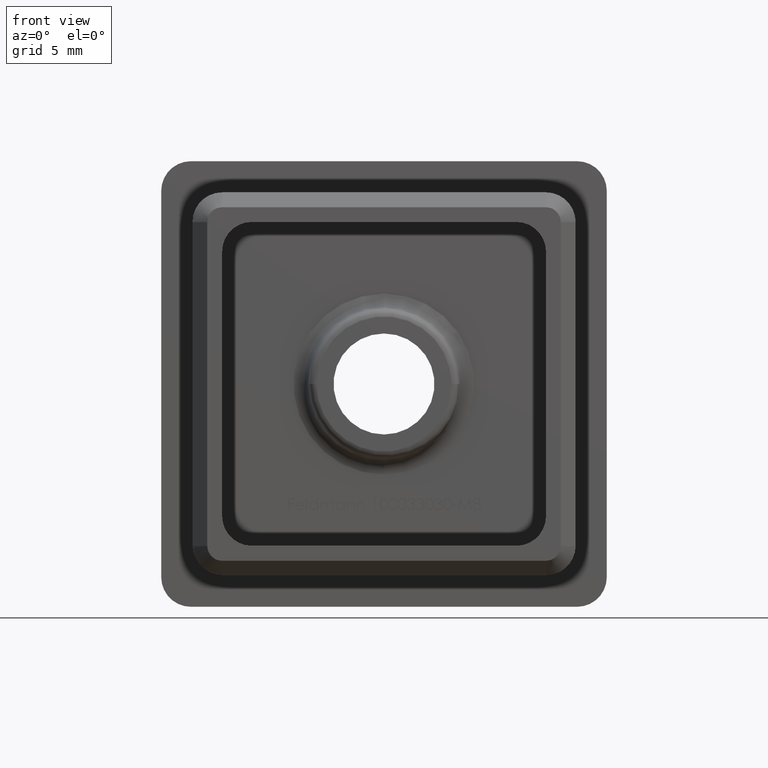
[diagram: clean part render]
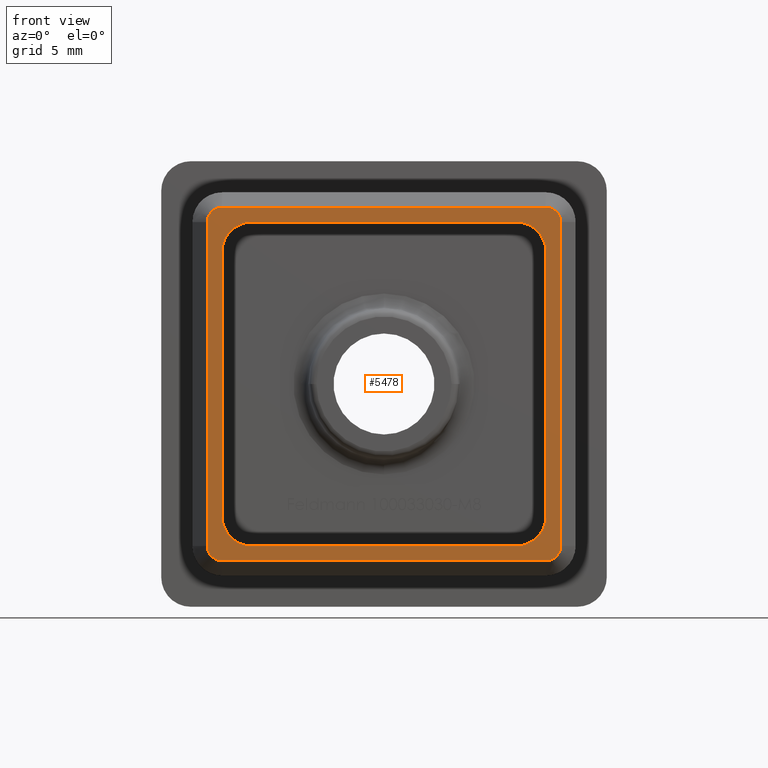
[diagram: same view with one face highlighted and labeled with its STEP entity id]
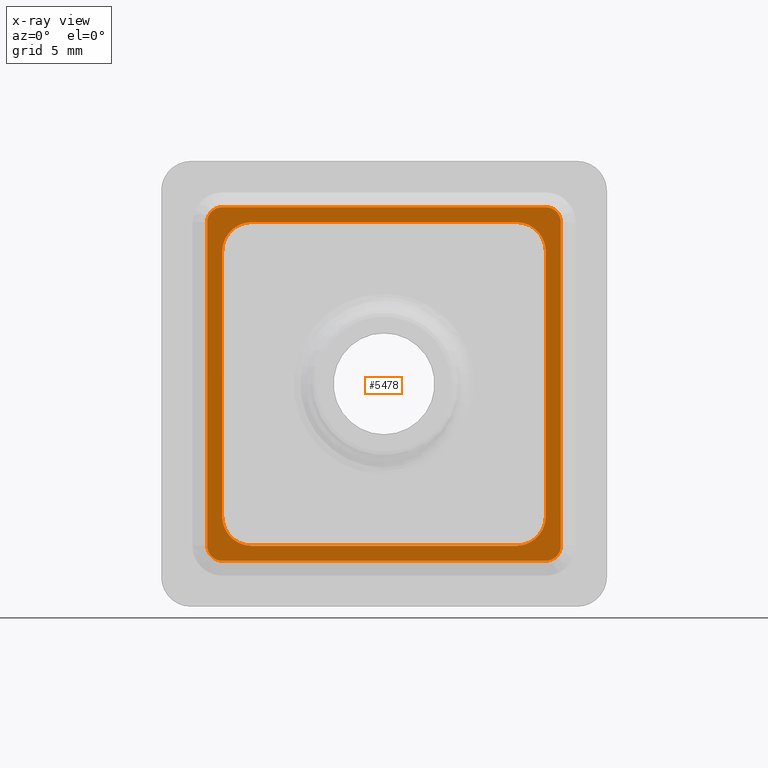
[diagram: x-ray of the same camera — body ghosted, the highlighted face saturated]
A machine part, front view. The second image highlights one B-rep face of the part: STEP entity #5478.
The next image is the same camera in x-ray: the body ghosted, the highlighted face saturated — about 0% of this face is hidden behind the body in this view.
In plain terms, the highlighted planar face has unit normal (0, -1, 0).
Its self-contained STEP definition (entity closure, byte-faithful):
#151 = DIRECTION ( 'NONE',  ( 0.0000000000000000000, 0.0000000000000000000, -1.000000000000000000 ) ) ;
#152 = CARTESIAN_POINT ( 'NONE',  ( 11.90000000000000400, -20.00000000000000000, -10.90000000000000400 ) ) ;
#306 = CARTESIAN_POINT ( 'NONE',  ( 10.90000000000000400, -20.00000000000000000, -8.900000000000007500 ) ) ;
#333 = VECTOR ( 'NONE', #13597, 1000.000000000000000 ) ;
#517 = DIRECTION ( 'NONE',  ( 0.0000000000000000000, 0.0000000000000000000, -1.000000000000000000 ) ) ;
#789 = ORIENTED_EDGE ( 'NONE', *, *, #14087, .T. ) ;
#831 = VECTOR ( 'NONE', #4266, 1000.000000000000000 ) ;
#946 = EDGE_CURVE ( 'NONE', #8048, #8342, #2799, .T. ) ;
#970 = VECTOR ( 'NONE', #7941, 1000.000000000000000 ) ;
#1133 = CARTESIAN_POINT ( 'NONE',  ( -11.90000000000000400, -20.00000000000000000, 10.90000000000000600 ) ) ;
#1223 = CARTESIAN_POINT ( 'NONE',  ( 8.900000000000005700, -20.00000000000000000, 8.900000000000005700 ) ) ;
#1270 = CIRCLE ( 'NONE', #8022, 2.000000000000000000 ) ;
#1606 = VERTEX_POINT ( 'NONE', #10081 ) ;
#1645 = CARTESIAN_POINT ( 'NONE',  ( 10.90000000000000600, -20.00000000000000000, 8.900000000000005700 ) ) ;
#1692 = ORIENTED_EDGE ( 'NONE', *, *, #12289, .T. ) ;
#1766 = EDGE_LOOP ( 'NONE', ( #3030, #1692, #14802, #13570, #16777, #789, #7461, #6140 ) ) ;
#1894 = VERTEX_POINT ( 'NONE', #1133 ) ;
#1962 = VERTEX_POINT ( 'NONE', #16712 ) ;
#2320 = CARTESIAN_POINT ( 'NONE',  ( -10.90000000000000600, -20.00000000000000000, -10.90000000000000600 ) ) ;
#2635 = ORIENTED_EDGE ( 'NONE', *, *, #13159, .T. ) ;
#2688 = EDGE_CURVE ( 'NONE', #8754, #5545, #2803, .T. ) ;
#2799 = LINE ( 'NONE', #14195, #831 ) ;
#2803 = LINE ( 'NONE', #3004, #3715 ) ;
#2955 = EDGE_CURVE ( 'NONE', #3107, #7989, #14870, .T. ) ;
#3004 = CARTESIAN_POINT ( 'NONE',  ( -10.90000000000000600, -20.00000000000000000, -10.90000000000000400 ) ) ;
#3030 = ORIENTED_EDGE ( 'NONE', *, *, #12438, .T. ) ;
#3039 = LINE ( 'NONE', #11054, #16442 ) ;
#3100 = DIRECTION ( 'NONE',  ( 0.0000000000000000000, 0.0000000000000000000, -1.000000000000000000 ) ) ;
#3107 = VERTEX_POINT ( 'NONE', #14673 ) ;
#3118 = CARTESIAN_POINT ( 'NONE',  ( 0.0000000000000000000, -20.00000000000000000, 0.0000000000000000000 ) ) ;
#3224 = DIRECTION ( 'NONE',  ( 0.0000000000000000000, -1.000000000000000000, 0.0000000000000000000 ) ) ;
#3242 = DIRECTION ( 'NONE',  ( 0.0000000000000000000, -1.000000000000000000, 0.0000000000000000000 ) ) ;
#3715 = VECTOR ( 'NONE', #5778, 1000.000000000000000 ) ;
#3804 = DIRECTION ( 'NONE',  ( -0.0000000000000000000, 1.000000000000000000, -0.0000000000000000000 ) ) ;
#4214 = AXIS2_PLACEMENT_3D ( 'NONE', #3118, #15719, #7326 ) ;
#4266 = DIRECTION ( 'NONE',  ( 7.957447137508285800E-017, -0.0000000000000000000, 1.000000000000000000 ) ) ;
#4315 = EDGE_CURVE ( 'NONE', #8048, #5545, #9779, .T. ) ;
#4365 = VERTEX_POINT ( 'NONE', #13089 ) ;
#4517 = EDGE_CURVE ( 'NONE', #8055, #1962, #12951, .T. ) ;
#4566 = CARTESIAN_POINT ( 'NONE',  ( 10.90000000000000600, -20.00000000000000000, -10.90000000000000400 ) ) ;
#4592 = CARTESIAN_POINT ( 'NONE',  ( 8.900000000000007500, -20.00000000000000000, -8.900000000000005700 ) ) ;
#4657 = CARTESIAN_POINT ( 'NONE',  ( -10.90000000000000600, -20.00000000000000000, 11.90000000000000400 ) ) ;
#4800 = EDGE_CURVE ( 'NONE', #1606, #4365, #9359, .T. ) ;
#4977 = VECTOR ( 'NONE', #14877, 1000.000000000000000 ) ;
#4992 = LINE ( 'NONE', #11694, #4977 ) ;
#5471 = DIRECTION ( 'NONE',  ( 0.0000000000000000000, -0.0000000000000000000, -1.000000000000000000 ) ) ;
#5478 = ADVANCED_FACE ( 'NONE', ( #16389, #12616 ), #11418, .T. ) ;
#5545 = VERTEX_POINT ( 'NONE', #7209 ) ;
#5719 = VERTEX_POINT ( 'NONE', #11886 ) ;
#5778 = DIRECTION ( 'NONE',  ( 1.000000000000000000, 0.0000000000000000000, -7.957447137508287000E-017 ) ) ;
#5928 = CIRCLE ( 'NONE', #9669, 0.9999999999999991100 ) ;
#5933 = DIRECTION ( 'NONE',  ( -0.0000000000000000000, 1.000000000000000000, -0.0000000000000000000 ) ) ;
#6048 = AXIS2_PLACEMENT_3D ( 'NONE', #1223, #18126, #18254 ) ;
#6109 = DIRECTION ( 'NONE',  ( -1.000000000000000000, 0.0000000000000000000, 0.0000000000000000000 ) ) ;
#6140 = ORIENTED_EDGE ( 'NONE', *, *, #12141, .T. ) ;
#6249 = CARTESIAN_POINT ( 'NONE',  ( 11.90000000000000200, -20.00000000000000000, 10.90000000000000600 ) ) ;
#6256 = VERTEX_POINT ( 'NONE', #6249 ) ;
#6273 = ORIENTED_EDGE ( 'NONE', *, *, #8223, .T. ) ;
#6607 = ORIENTED_EDGE ( 'NONE', *, *, #2955, .F. ) ;
#6643 = DIRECTION ( 'NONE',  ( 0.0000000000000000000, -1.000000000000000000, 0.0000000000000000000 ) ) ;
#6753 = DIRECTION ( 'NONE',  ( 0.0000000000000000000, 0.0000000000000000000, -1.000000000000000000 ) ) ;
#6878 = CIRCLE ( 'NONE', #11859, 0.9999999999999991100 ) ;
#7004 = CARTESIAN_POINT ( 'NONE',  ( -10.90000000000000600, -20.00000000000000000, 10.90000000000000600 ) ) ;
#7082 = CARTESIAN_POINT ( 'NONE',  ( -10.90000000000000600, -20.00000000000000000, 10.90000000000000600 ) ) ;
#7209 = CARTESIAN_POINT ( 'NONE',  ( 8.900000000000007500, -20.00000000000000000, -10.90000000000000600 ) ) ;
#7326 = DIRECTION ( 'NONE',  ( 0.0000000000000000000, -0.0000000000000000000, -1.000000000000000000 ) ) ;
#7461 = ORIENTED_EDGE ( 'NONE', *, *, #4800, .T. ) ;
#7490 = CARTESIAN_POINT ( 'NONE',  ( 10.90000000000000400, -20.00000000000000000, 11.90000000000000400 ) ) ;
#7941 = DIRECTION ( 'NONE',  ( -1.000000000000000000, -0.0000000000000000000, -0.0000000000000000000 ) ) ;
#7989 = VERTEX_POINT ( 'NONE', #18244 ) ;
#8022 = AXIS2_PLACEMENT_3D ( 'NONE', #10218, #5933, #17199 ) ;
#8048 = VERTEX_POINT ( 'NONE', #306 ) ;
#8055 = VERTEX_POINT ( 'NONE', #7490 ) ;
#8113 = CARTESIAN_POINT ( 'NONE',  ( -10.90000000000000600, -20.00000000000000000, 10.90000000000000600 ) ) ;
#8223 = EDGE_CURVE ( 'NONE', #14992, #8342, #13243, .T. ) ;
#8342 = VERTEX_POINT ( 'NONE', #1645 ) ;
#8361 = VERTEX_POINT ( 'NONE', #152 ) ;
#8672 = EDGE_CURVE ( 'NONE', #1962, #1894, #17212, .T. ) ;
#8754 = VERTEX_POINT ( 'NONE', #14288 ) ;
#8795 = ORIENTED_EDGE ( 'NONE', *, *, #4315, .T. ) ;
#9321 = CIRCLE ( 'NONE', #12240, 2.000000000000000000 ) ;
#9359 = CIRCLE ( 'NONE', #16803, 0.9999999999999991100 ) ;
#9575 = VECTOR ( 'NONE', #6109, 1000.000000000000000 ) ;
#9669 = AXIS2_PLACEMENT_3D ( 'NONE', #4566, #3242, #517 ) ;
#9672 = ORIENTED_EDGE ( 'NONE', *, *, #12664, .T. ) ;
#9779 = CIRCLE ( 'NONE', #11437, 2.000000000000000000 ) ;
#10081 = CARTESIAN_POINT ( 'NONE',  ( -11.90000000000000400, -20.00000000000000000, -10.90000000000000600 ) ) ;
#10218 = CARTESIAN_POINT ( 'NONE',  ( -8.900000000000005700, -20.00000000000000000, -8.900000000000003900 ) ) ;
#10765 = CARTESIAN_POINT ( 'NONE',  ( 11.90000000000000400, -20.00000000000000000, 10.90000000000000600 ) ) ;
#10998 = DIRECTION ( 'NONE',  ( 0.0000000000000000000, 0.0000000000000000000, -1.000000000000000000 ) ) ;
#11054 = CARTESIAN_POINT ( 'NONE',  ( -11.90000000000000400, -20.00000000000000000, -10.90000000000000400 ) ) ;
#11418 = PLANE ( 'NONE',  #4214 ) ;
#11437 = AXIS2_PLACEMENT_3D ( 'NONE', #4592, #13153, #151 ) ;
#11694 = CARTESIAN_POINT ( 'NONE',  ( 10.90000000000000400, -20.00000000000000000, -11.90000000000000400 ) ) ;
#11783 = CARTESIAN_POINT ( 'NONE',  ( 10.90000000000000400, -20.00000000000000000, 10.90000000000000600 ) ) ;
#11859 = AXIS2_PLACEMENT_3D ( 'NONE', #11783, #3224, #3100 ) ;
#11886 = CARTESIAN_POINT ( 'NONE',  ( 10.90000000000000400, -20.00000000000000000, -11.90000000000000400 ) ) ;
#11911 = LINE ( 'NONE', #7004, #970 ) ;
#12141 = EDGE_CURVE ( 'NONE', #4365, #5719, #4992, .T. ) ;
#12240 = AXIS2_PLACEMENT_3D ( 'NONE', #13821, #3804, #15345 ) ;
#12289 = EDGE_CURVE ( 'NONE', #8361, #6256, #13972, .T. ) ;
#12394 = DIRECTION ( 'NONE',  ( 0.0000000000000000000, -1.000000000000000000, 0.0000000000000000000 ) ) ;
#12438 = EDGE_CURVE ( 'NONE', #5719, #8361, #5928, .T. ) ;
#12616 = FACE_BOUND ( 'NONE', #15062, .T. ) ;
#12664 = EDGE_CURVE ( 'NONE', #8754, #7989, #1270, .T. ) ;
#12951 = LINE ( 'NONE', #4657, #9575 ) ;
#13089 = CARTESIAN_POINT ( 'NONE',  ( -10.90000000000000600, -20.00000000000000000, -11.90000000000000400 ) ) ;
#13153 = DIRECTION ( 'NONE',  ( -0.0000000000000000000, 1.000000000000000000, -0.0000000000000000000 ) ) ;
#13159 = EDGE_CURVE ( 'NONE', #3107, #15376, #9321, .T. ) ;
#13243 = CIRCLE ( 'NONE', #6048, 2.000000000000000000 ) ;
#13423 = EDGE_CURVE ( 'NONE', #6256, #8055, #6878, .T. ) ;
#13570 = ORIENTED_EDGE ( 'NONE', *, *, #4517, .T. ) ;
#13597 = DIRECTION ( 'NONE',  ( 0.0000000000000000000, 0.0000000000000000000, 1.000000000000000000 ) ) ;
#13821 = CARTESIAN_POINT ( 'NONE',  ( -8.900000000000005700, -20.00000000000000000, 8.900000000000005700 ) ) ;
#13972 = LINE ( 'NONE', #10765, #333 ) ;
#14074 = ORIENTED_EDGE ( 'NONE', *, *, #2688, .F. ) ;
#14087 = EDGE_CURVE ( 'NONE', #1894, #1606, #3039, .T. ) ;
#14195 = CARTESIAN_POINT ( 'NONE',  ( 10.90000000000000600, -20.00000000000000000, 10.90000000000000600 ) ) ;
#14288 = CARTESIAN_POINT ( 'NONE',  ( -8.900000000000005700, -20.00000000000000000, -10.90000000000000400 ) ) ;
#14673 = CARTESIAN_POINT ( 'NONE',  ( -10.90000000000000600, -20.00000000000000000, 8.900000000000005700 ) ) ;
#14802 = ORIENTED_EDGE ( 'NONE', *, *, #13423, .T. ) ;
#14870 = LINE ( 'NONE', #7082, #18206 ) ;
#14877 = DIRECTION ( 'NONE',  ( 1.000000000000000000, 0.0000000000000000000, 0.0000000000000000000 ) ) ;
#14992 = VERTEX_POINT ( 'NONE', #15965 ) ;
#15062 = EDGE_LOOP ( 'NONE', ( #14074, #9672, #6607, #2635, #15354, #6273, #16604, #8795 ) ) ;
#15345 = DIRECTION ( 'NONE',  ( 0.0000000000000000000, 0.0000000000000000000, -1.000000000000000000 ) ) ;
#15354 = ORIENTED_EDGE ( 'NONE', *, *, #17188, .F. ) ;
#15376 = VERTEX_POINT ( 'NONE', #16072 ) ;
#15719 = DIRECTION ( 'NONE',  ( 0.0000000000000000000, -1.000000000000000000, 0.0000000000000000000 ) ) ;
#15965 = CARTESIAN_POINT ( 'NONE',  ( 8.900000000000007500, -20.00000000000000000, 10.90000000000000600 ) ) ;
#16072 = CARTESIAN_POINT ( 'NONE',  ( -8.900000000000005700, -20.00000000000000000, 10.90000000000000600 ) ) ;
#16389 = FACE_OUTER_BOUND ( 'NONE', #1766, .T. ) ;
#16442 = VECTOR ( 'NONE', #10998, 1000.000000000000000 ) ;
#16604 = ORIENTED_EDGE ( 'NONE', *, *, #946, .F. ) ;
#16712 = CARTESIAN_POINT ( 'NONE',  ( -10.90000000000000600, -20.00000000000000000, 11.90000000000000400 ) ) ;
#16768 = DIRECTION ( 'NONE',  ( 0.0000000000000000000, 0.0000000000000000000, -1.000000000000000000 ) ) ;
#16777 = ORIENTED_EDGE ( 'NONE', *, *, #8672, .T. ) ;
#16803 = AXIS2_PLACEMENT_3D ( 'NONE', #2320, #6643, #6753 ) ;
#17188 = EDGE_CURVE ( 'NONE', #14992, #15376, #11911, .T. ) ;
#17199 = DIRECTION ( 'NONE',  ( 0.0000000000000000000, 0.0000000000000000000, -1.000000000000000000 ) ) ;
#17212 = CIRCLE ( 'NONE', #18458, 0.9999999999999991100 ) ;
#18126 = DIRECTION ( 'NONE',  ( -0.0000000000000000000, 1.000000000000000000, -0.0000000000000000000 ) ) ;
#18206 = VECTOR ( 'NONE', #5471, 1000.000000000000000 ) ;
#18244 = CARTESIAN_POINT ( 'NONE',  ( -10.90000000000000600, -20.00000000000000000, -8.900000000000003900 ) ) ;
#18254 = DIRECTION ( 'NONE',  ( 0.0000000000000000000, 0.0000000000000000000, -1.000000000000000000 ) ) ;
#18458 = AXIS2_PLACEMENT_3D ( 'NONE', #8113, #12394, #16768 ) ;